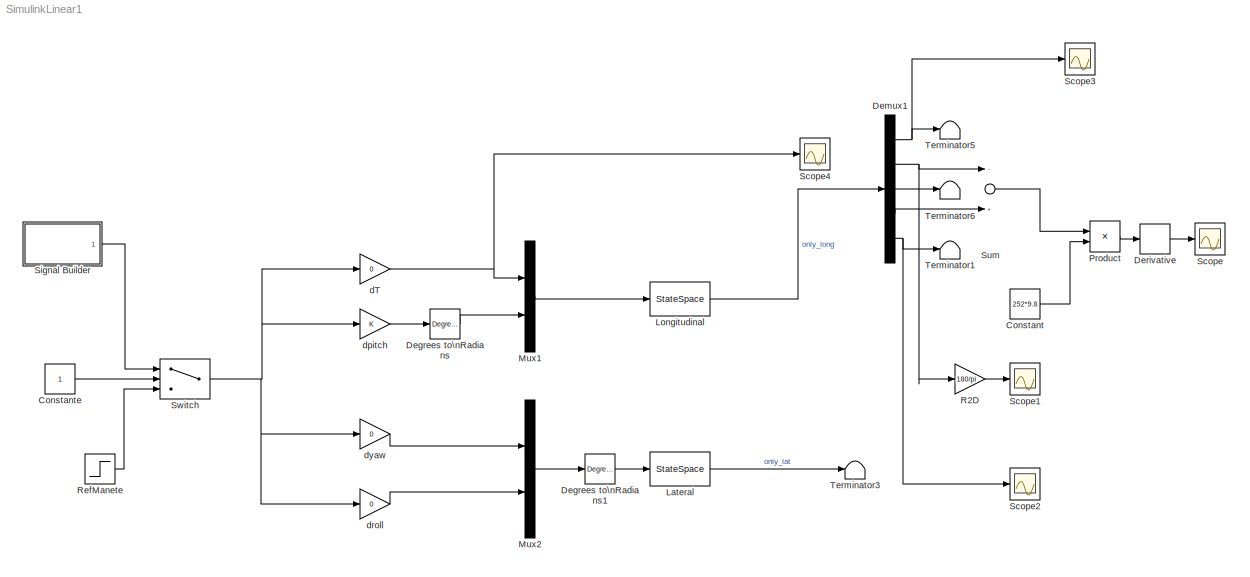
MODEL SimulinkLinear1
KIND model
BLOCK [Constant] Constant
  SID = 24
  Value = 252*9.8
BLOCK [Constant] Constante
  SID = 44
BLOCK [Reference] Degrees to\nRadians  REF=simulink_extras/Transformations/Degrees to\nRadians
  Ports = [1, 1]
  SID = 49
  SourceBlock = simulink_extras/Transformations/Degrees to\nRadians
  SourceType = DegreesToRadians
BLOCK [Reference] Degrees to\nRadians1  REF=simulink_extras/Transformations/Degrees to\nRadians
  Ports = [1, 1]
  SID = 50
  SourceBlock = simulink_extras/Transformations/Degrees to\nRadians
  SourceType = DegreesToRadians
BLOCK [Demux] Demux1
  DisplayOption = bar
  Outputs = 5
  Ports = [1, 5]
  SID = 21
BLOCK [Derivative] Derivative
  SID = 26
BLOCK [StateSpace] Lateral
  A = A_Lat
  B = B_Lat
  C = C_Lat
  D = D_Lat
  Ports = [1, 1]
  SID = 3
  X0 = 0
BLOCK [StateSpace] Longitudinal
  A = A_Long
  B = B_Long
  C = C_Long
  D = D_Long
  Ports = [1, 1]
  SID = 4
  X0 = 0
BLOCK [Mux] Mux1
  DisplayOption = bar
  Inputs = 2
  Ports = [2, 1]
  SID = 6
BLOCK [Mux] Mux2
  DisplayOption = bar
  Inputs = 2
  Ports = [2, 1]
  SID = 7
BLOCK [Product] Product
  InputSameDT = off
  OutDataTypeStr = Inherit: Inherit via internal rule
  Ports = [2, 1]
  RndMeth = Floor
  SID = 20
  SaturateOnIntegerOverflow = off
BLOCK [Gain] R2D
  Gain = 180/pi
  OutDataTypeStr = Inherit: Inherit via internal rule
  ParamDataTypeStr = Inherit: Inherit via internal rule
  SID = 47
  SaturateOnIntegerOverflow = off
BLOCK [Step] RefManete
  After = 0.05
  SID = 27
  SampleTime = 0
  VectorParams1D = off
BLOCK [Scope] Scope
  DataFormat = StructureWithTime
  Floating = off
  NumInputPorts = 1
  Ports = [1]
  SID = 25
  SampleTime = 0
  ShowLegends = off
BLOCK [Scope] Scope1
  DataFormat = StructureWithTime
  Floating = off
  NumInputPorts = 1
  Ports = [1]
  SID = 33
  SampleTime = 0
  SaveName = ScopeData1
  ShowLegends = off
BLOCK [Scope] Scope2
  DataFormat = StructureWithTime
  Floating = off
  NumInputPorts = 1
  Ports = [1]
  SID = 48
  SampleTime = 0
  SaveName = ScopeData2
  ShowLegends = off
BLOCK [Scope] Scope3
  DataFormat = StructureWithTime
  Floating = off
  NumInputPorts = 1
  Ports = [1]
  SID = 51
  SampleTime = 0
  SaveName = ScopeData3
  ShowLegends = off
BLOCK [Scope] Scope4
  DataFormat = StructureWithTime
  Floating = off
  NumInputPorts = 1
  Ports = [1]
  SID = 53
  SampleTime = 0
  SaveName = ScopeData4
  ShowLegends = off
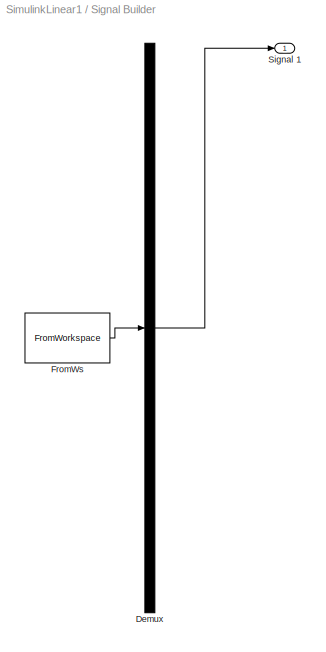
BLOCK [SubSystem] Signal Builder
  ClipboardFcn = sigbuilder_block('clipboard');
  CloseFcn = sigbuilder_block('close');
  ContinueFcn = sigbuilder_block('continue')
  CopyFcn = sigbuilder_block('copy');
  DeleteFcn = sigbuilder_block('delete');
  FunctionWithSeparateData = off
  LoadFcn = sigbuilder_block('load');
  MaskHideContents = on
  MinAlgLoopOccurrences = off
  ModelCloseFcn = sigbuilder_block('modelClose');
  NameChangeFcn = sigbuilder_block('namechange');
  Opaque = off
  OpenFcn = sigbuilder_block('open',[6 28.5 1248 693 ]);
  PauseFcn = sigbuilder_block('pause')
  Ports = [0, 1]
  PreSaveFcn = sigbuilder_block('preSave');
  PropExecContextOutsideSubsystem = off
  RTWSystemCode = Auto
  RequestExecContextInheritance = off
  SID = 38
  StartFcn = sigbuilder_block('start');
  StopFcn = sigbuilder_block('stop');
  Tag = STV Subsys
BLOCK [Demux] Signal Builder/Demux
  Outputs = 1
  Ports = [1, 1]
  SID = 39
  Tag = STV Demux
BLOCK [FromWorkspace] Signal Builder/FromWs
  SID = 40
  SampleTime = 0
  SigBuilderData = DataTag0
  Tag = STV FromWs
  VariableName = tuvar
  VnvData = DataTag1
  ZeroCross = on
BLOCK [Outport] Signal Builder/Signal 1
  IconDisplay = Port number
  SID = 41
  Tag = STV Outport
BLOCK [Sum] Sum
  InputSameDT = off
  Inputs = -+
  OutDataTypeStr = Inherit: Inherit via internal rule
  Ports = [2, 1]
  SID = 22
  SaturateOnIntegerOverflow = off
BLOCK [Switch] Switch
  InputSameDT = off
  SID = 43
  SaturateOnIntegerOverflow = off
BLOCK [Terminator] Terminator1
  SID = 45
BLOCK [Terminator] Terminator3
  SID = 14
BLOCK [Terminator] Terminator5
  SID = 31
BLOCK [Terminator] Terminator6
  SID = 32
BLOCK [Gain] dT
  Gain = 0
  OutDataTypeStr = Inherit: Inherit via internal rule
  ParamDataTypeStr = Inherit: Inherit via internal rule
  SID = 16
  SaturateOnIntegerOverflow = off
BLOCK [Gain] dpitch
  OutDataTypeStr = Inherit: Inherit via internal rule
  ParamDataTypeStr = Inherit: Inherit via internal rule
  SID = 17
  SaturateOnIntegerOverflow = off
BLOCK [Gain] droll
  Gain = 0
  OutDataTypeStr = Inherit: Inherit via internal rule
  ParamDataTypeStr = Inherit: Inherit via internal rule
  SID = 18
  SaturateOnIntegerOverflow = off
BLOCK [Gain] dyaw
  Gain = 0
  OutDataTypeStr = Inherit: Inherit via internal rule
  ParamDataTypeStr = Inherit: Inherit via internal rule
  SID = 19
  SaturateOnIntegerOverflow = off
LINE Constant:1 -> Product:2
LINE Constante:1 -> Switch:2
LINE Degrees to\nRadians1:1 -> Lateral:1
LINE Degrees to\nRadians:1 -> Mux1:2
NET Demux1:1 -> Scope3:1, Terminator5:1
NET Demux1:2 -> R2D:1, Sum:1
LINE Demux1:3 -> Terminator6:1
LINE Demux1:4 -> Sum:2
NET Demux1:5 -> Scope2:1, Terminator1:1
LINE Derivative:1 -> Scope:1
LINE Lateral:1 -> Terminator3:1
LINE Longitudinal:1 -> Demux1:1
LINE Mux1:1 -> Longitudinal:1
LINE Mux2:1 -> Degrees to\nRadians1:1
LINE Product:1 -> Derivative:1
LINE R2D:1 -> Scope1:1
LINE RefManete:1 -> Switch:3
LINE Signal Builder/Demux:1 -> Signal Builder/Signal 1:1
LINE Signal Builder/FromWs:1 -> Signal Builder/Demux:1
LINE Signal Builder:1 -> Switch:1
LINE Sum:1 -> Product:1
NET Switch:1 -> dT:1, dpitch:1, droll:1, dyaw:1
NET dT:1 -> Mux1:1, Scope4:1
LINE dpitch:1 -> Degrees to\nRadians:1
LINE droll:1 -> Mux2:2
LINE dyaw:1 -> Mux2:1
note: NET lines group one-source signal fan-out (src -> all destinations, sorted); 1:1 wires keep LINE
